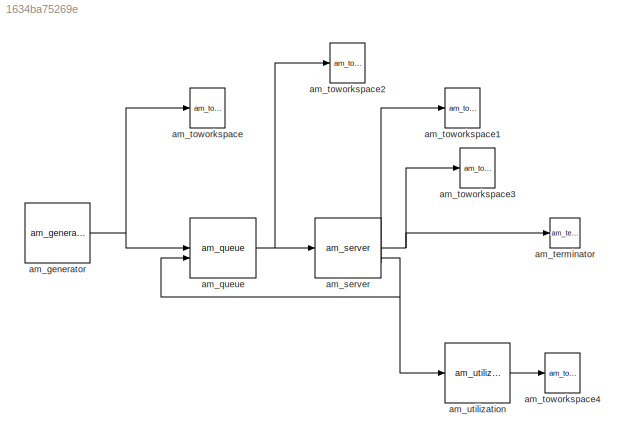
MODEL slx_1634ba75269e
KIND model
CONFIG AbsTol = auto
CONFIG EnableMultiTasking = off
CONFIG FixedStep = auto
CONFIG MaxStep = auto
CONFIG MinStep = auto
CONFIG RelTol = 1e-3
CONFIG SampleTimeConstraint = Unconstrained
CONFIG SolverName = VariableStepAuto
CONFIG StartTime = 0.0
CONFIG StopTime = 10.0
BLOCK [Reference] am_generator  REF=NSA_DEVS_SOURCES/am_generator
  SourceBlock = NSA_DEVS_SOURCES/am_generator
  SourceProductName = Sources
  SourceType = Generator
BLOCK [Reference] am_queue  REF=NSA_DEVS_LOGISTICS/am_queue
  SourceBlock = NSA_DEVS_LOGISTICS/am_queue
  SourceProductName = Logistics
  SourceType = Queue
BLOCK [Reference] am_server  REF=NSA_DEVS_LOGISTICS/am_server
  SourceBlock = NSA_DEVS_LOGISTICS/am_server
  SourceProductName = Logistics
  SourceType = Server
BLOCK [Reference] am_terminator  REF=NSA_DEVS_LOGISTICS/am_terminator
  SourceBlock = NSA_DEVS_LOGISTICS/am_terminator
  SourceProductName = Logistics
  SourceType = Terminator
BLOCK [Reference] am_toworkspace  REF=NSA_DEVS_SINKS/am_toworkspace
  SourceBlock = NSA_DEVS_SINKS/am_toworkspace
  SourceProductName = Sinks
  SourceType = ToWorkspace
BLOCK [Reference] am_toworkspace1  REF=NSA_DEVS_SINKS/am_toworkspace
  SourceBlock = NSA_DEVS_SINKS/am_toworkspace
  SourceProductName = Sinks
  SourceType = ToWorkspace
BLOCK [Reference] am_toworkspace2  REF=NSA_DEVS_SINKS/am_toworkspace
  SourceBlock = NSA_DEVS_SINKS/am_toworkspace
  SourceProductName = Sinks
  SourceType = ToWorkspace
BLOCK [Reference] am_toworkspace3  REF=NSA_DEVS_SINKS/am_toworkspace
  SourceBlock = NSA_DEVS_SINKS/am_toworkspace
  SourceProductName = Sinks
  SourceType = ToWorkspace
BLOCK [Reference] am_toworkspace4  REF=NSA_DEVS_SINKS/am_toworkspace
  SourceBlock = NSA_DEVS_SINKS/am_toworkspace
  SourceProductName = Sinks
  SourceType = ToWorkspace
BLOCK [Reference] am_utilization  REF=NSA_DEVS_STATISTICS/am_utilization
  SourceBlock = NSA_DEVS_STATISTICS/am_utilization
  SourceProductName = Statistics
  SourceType = Utilization
NET am_generator:1 -> am_queue:1, am_toworkspace:1
NET am_queue:1 -> am_server:1, am_toworkspace2:1
NET am_server:1 -> am_terminator:1, am_toworkspace3:1
NET am_server:2 -> am_queue:2, am_utilization:1
LINE am_server:3 -> am_toworkspace1:1
LINE am_utilization:1 -> am_toworkspace4:1
note: NET lines group one-source signal fan-out (src -> all destinations, sorted); 1:1 wires keep LINE
